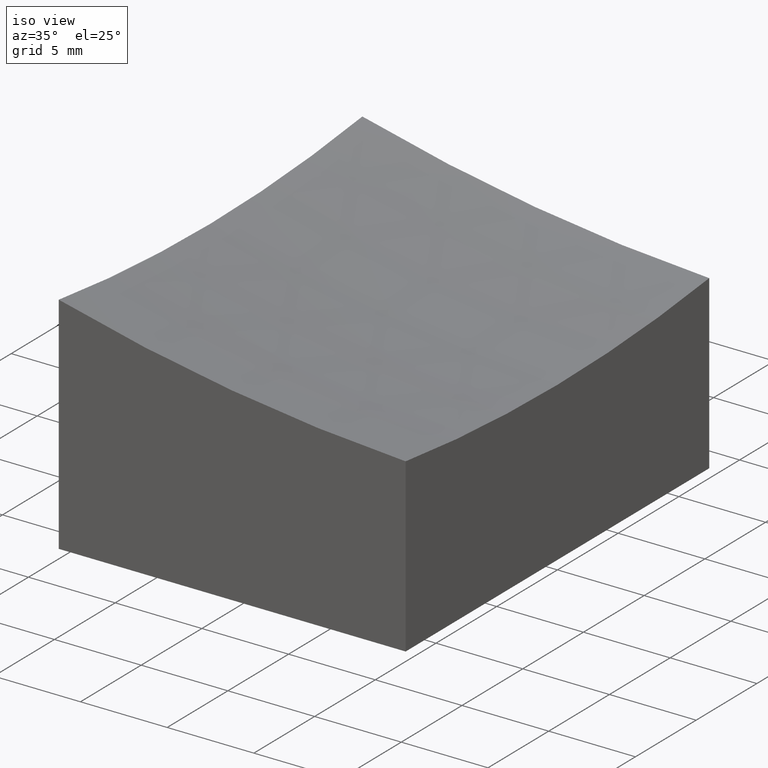
[diagram: clean part render]
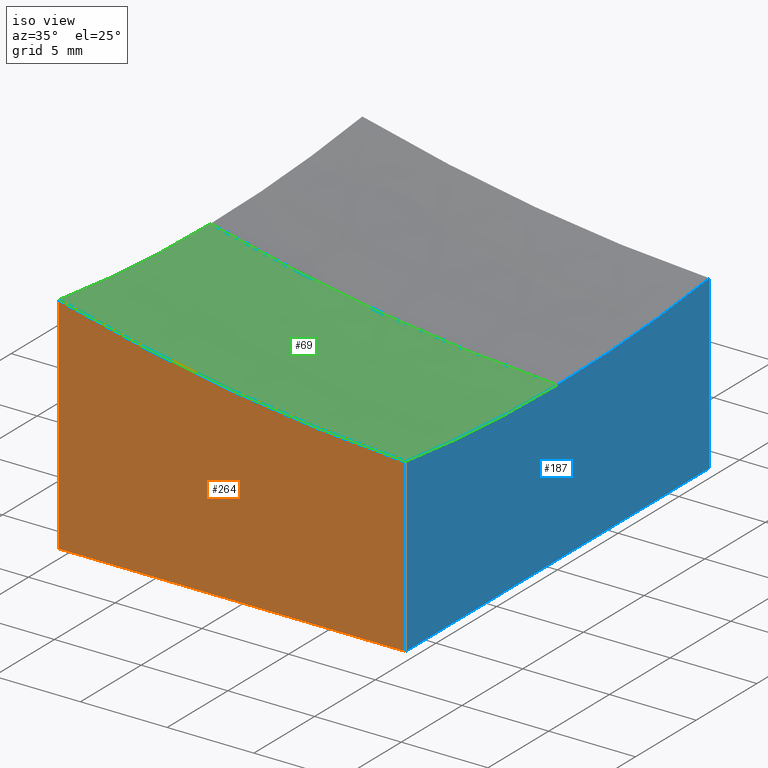
[diagram: same view with three faces highlighted in distinct colors, each labeled with its STEP entity id]
A machine part, iso view with three faces highlighted in distinct colors.
Their STEP definitions:

[orange] entity #264 — the highlighted planar face has unit normal (-0, 1, 0).
#2 = VERTEX_POINT ( 'NONE', #99 ) ;
#7 = AXIS2_PLACEMENT_3D ( 'NONE', #267, #100, #229 ) ;
#12 = ORIENTED_EDGE ( 'NONE', *, *, #246, .F. ) ;
#19 = EDGE_CURVE ( 'NONE', #32, #2, #88, .T. ) ;
#25 = ORIENTED_EDGE ( 'NONE', *, *, #217, .T. ) ;
#29 = CARTESIAN_POINT ( 'NONE',  ( -9.999999999999998224, -12.50000000000000355, 10.00000000000000000 ) ) ;
#30 = LINE ( 'NONE', #178, #33 ) ;
#32 = VERTEX_POINT ( 'NONE', #165 ) ;
#33 = VECTOR ( 'NONE', #202, 1000.000000000000000 ) ;
#34 = DIRECTION ( 'NONE',  ( -0.000000000000000000, -0.000000000000000000, -1.000000000000000000 ) ) ;
#39 = EDGE_LOOP ( 'NONE', ( #12, #169, #206, #25 ) ) ;
#43 = VERTEX_POINT ( 'NONE', #209 ) ;
#58 = PLANE ( 'NONE',  #7 ) ;
#88 = CIRCLE ( 'NONE', #144, 99.21567416492216296 ) ;
#99 = CARTESIAN_POINT ( 'NONE',  ( -9.999999999999998224, -12.50000000000000355, 2.985678151642384925 ) ) ;
#100 = DIRECTION ( 'NONE',  ( -1.734723475976807094E-16, 1.000000000000000000, 0.000000000000000000 ) ) ;
#112 = VECTOR ( 'NONE', #115, 1000.000000000000000 ) ;
#115 = DIRECTION ( 'NONE',  ( -0.000000000000000000, -0.000000000000000000, -1.000000000000000000 ) ) ;
#126 = DIRECTION ( 'NONE',  ( -1.734723475976807094E-16, 1.000000000000000000, 0.000000000000000000 ) ) ;
#139 = VECTOR ( 'NONE', #34, 1000.000000000000000 ) ;
#144 = AXIS2_PLACEMENT_3D ( 'NONE', #271, #126, #227 ) ;
#145 = CARTESIAN_POINT ( 'NONE',  ( 10.00000000000000178, -12.50000000000000000, 10.00000000000000000 ) ) ;
#148 = LINE ( 'NONE', #145, #139 ) ;
#153 = VERTEX_POINT ( 'NONE', #222 ) ;
#165 = CARTESIAN_POINT ( 'NONE',  ( 10.00000000000000178, -12.50000000000000000, -0.08960591303207310343 ) ) ;
#167 = EDGE_CURVE ( 'NONE', #2, #43, #220, .T. ) ;
#169 = ORIENTED_EDGE ( 'NONE', *, *, #19, .T. ) ;
#178 = CARTESIAN_POINT ( 'NONE',  ( 10.00000000000000178, -12.50000000000000000, -10.00000000000000000 ) ) ;
#202 = DIRECTION ( 'NONE',  ( 1.000000000000000000, 1.734723475976807094E-16, -0.000000000000000000 ) ) ;
#206 = ORIENTED_EDGE ( 'NONE', *, *, #167, .T. ) ;
#209 = CARTESIAN_POINT ( 'NONE',  ( -9.999999999999998224, -12.50000000000000355, -10.00000000000000000 ) ) ;
#217 = EDGE_CURVE ( 'NONE', #43, #153, #30, .T. ) ;
#220 = LINE ( 'NONE', #29, #112 ) ;
#222 = CARTESIAN_POINT ( 'NONE',  ( 10.00000000000000178, -12.50000000000000000, -10.00000000000000000 ) ) ;
#227 = DIRECTION ( 'NONE',  ( -1.000000000000000000, -1.748436918438156363E-16, 0.000000000000000000 ) ) ;
#229 = DIRECTION ( 'NONE',  ( -1.000000000000000000, -1.734723475976807094E-16, 0.000000000000000000 ) ) ;
#246 = EDGE_CURVE ( 'NONE', #32, #153, #148, .T. ) ;
#247 = FACE_OUTER_BOUND ( 'NONE', #39, .T. ) ;
#264 = ADVANCED_FACE ( 'NONE', ( #247 ), #58, .F. ) ;
#267 = CARTESIAN_POINT ( 'NONE',  ( 10.00000000000000178, -12.50000000000000000, 10.00000000000000000 ) ) ;
#271 = CARTESIAN_POINT ( 'NONE',  ( 15.00000000000001599, -12.49999999999999822, 99.00000000000000000 ) ) ;

[blue] entity #187 — the highlighted planar face has unit normal (-1, 0, 0).
#8 = DIRECTION ( 'NONE',  ( -1.000000000000000000, 0.000000000000000000, 0.000000000000000000 ) ) ;
#18 = EDGE_CURVE ( 'NONE', #108, #32, #265, .T. ) ;
#32 = VERTEX_POINT ( 'NONE', #165 ) ;
#34 = DIRECTION ( 'NONE',  ( -0.000000000000000000, -0.000000000000000000, -1.000000000000000000 ) ) ;
#37 = CARTESIAN_POINT ( 'NONE',  ( 10.00000000000000178, 12.50000000000000000, 10.00000000000000000 ) ) ;
#49 = CARTESIAN_POINT ( 'NONE',  ( 10.00000000000000178, -12.50000000000000000, -10.00000000000000000 ) ) ;
#53 = CIRCLE ( 'NONE', #199, 99.87492177719090591 ) ;
#73 = DIRECTION ( 'NONE',  ( 0.000000000000000000, 0.000000000000000000, 1.000000000000000000 ) ) ;
#82 = ORIENTED_EDGE ( 'NONE', *, *, #177, .T. ) ;
#92 = DIRECTION ( 'NONE',  ( 0.000000000000000000, 0.000000000000000000, 1.000000000000000000 ) ) ;
#97 = VECTOR ( 'NONE', #260, 1000.000000000000000 ) ;
#98 = ORIENTED_EDGE ( 'NONE', *, *, #275, .T. ) ;
#101 = DIRECTION ( 'NONE',  ( -1.000000000000000000, 0.000000000000000000, 0.000000000000000000 ) ) ;
#108 = VERTEX_POINT ( 'NONE', #272 ) ;
#114 = CARTESIAN_POINT ( 'NONE',  ( 10.00000000000000178, 12.50000000000000000, -0.08960591303207310343 ) ) ;
#131 = ORIENTED_EDGE ( 'NONE', *, *, #246, .T. ) ;
#139 = VECTOR ( 'NONE', #34, 1000.000000000000000 ) ;
#143 = VERTEX_POINT ( 'NONE', #114 ) ;
#145 = CARTESIAN_POINT ( 'NONE',  ( 10.00000000000000178, -12.50000000000000000, 10.00000000000000000 ) ) ;
#148 = LINE ( 'NONE', #145, #139 ) ;
#153 = VERTEX_POINT ( 'NONE', #222 ) ;
#161 = LINE ( 'NONE', #49, #97 ) ;
#165 = CARTESIAN_POINT ( 'NONE',  ( 10.00000000000000178, -12.50000000000000000, -0.08960591303207310343 ) ) ;
#177 = EDGE_CURVE ( 'NONE', #153, #192, #161, .T. ) ;
#184 = LINE ( 'NONE', #37, #225 ) ;
#186 = DIRECTION ( 'NONE',  ( 0.000000000000000000, 0.000000000000000000, 1.000000000000000000 ) ) ;
#187 = ADVANCED_FACE ( 'NONE', ( #201 ), #242, .F. ) ;
#189 = CARTESIAN_POINT ( 'NONE',  ( 10.00000000000000178, 0.000000000000000000, 99.00000000000000000 ) ) ;
#192 = VERTEX_POINT ( 'NONE', #221 ) ;
#199 = AXIS2_PLACEMENT_3D ( 'NONE', #189, #273, #73 ) ;
#201 = FACE_OUTER_BOUND ( 'NONE', #268, .T. ) ;
#205 = DIRECTION ( 'NONE',  ( -0.000000000000000000, -0.000000000000000000, -1.000000000000000000 ) ) ;
#208 = AXIS2_PLACEMENT_3D ( 'NONE', #230, #101, #186 ) ;
#221 = CARTESIAN_POINT ( 'NONE',  ( 10.00000000000000178, 12.50000000000000000, -10.00000000000000000 ) ) ;
#222 = CARTESIAN_POINT ( 'NONE',  ( 10.00000000000000178, -12.50000000000000000, -10.00000000000000000 ) ) ;
#224 = EDGE_CURVE ( 'NONE', #143, #192, #184, .T. ) ;
#225 = VECTOR ( 'NONE', #205, 1000.000000000000000 ) ;
#230 = CARTESIAN_POINT ( 'NONE',  ( 10.00000000000000178, 0.000000000000000000, 99.00000000000000000 ) ) ;
#232 = ORIENTED_EDGE ( 'NONE', *, *, #18, .T. ) ;
#241 = CARTESIAN_POINT ( 'NONE',  ( 10.00000000000000178, -12.50000000000000000, 10.00000000000000000 ) ) ;
#242 = PLANE ( 'NONE',  #263 ) ;
#245 = ORIENTED_EDGE ( 'NONE', *, *, #224, .F. ) ;
#246 = EDGE_CURVE ( 'NONE', #32, #153, #148, .T. ) ;
#260 = DIRECTION ( 'NONE',  ( 0.000000000000000000, 1.000000000000000000, 0.000000000000000000 ) ) ;
#263 = AXIS2_PLACEMENT_3D ( 'NONE', #241, #8, #92 ) ;
#265 = CIRCLE ( 'NONE', #208, 99.87492177719090591 ) ;
#268 = EDGE_LOOP ( 'NONE', ( #245, #98, #232, #131, #82 ) ) ;
#272 = CARTESIAN_POINT ( 'NONE',  ( 10.00000000000000178, -6.123233995736767268E-16, -0.8749217771908888164 ) ) ;
#273 = DIRECTION ( 'NONE',  ( -1.000000000000000000, 0.000000000000000000, 0.000000000000000000 ) ) ;
#275 = EDGE_CURVE ( 'NONE', #143, #108, #53, .T. ) ;

[green] entity #69 — the highlighted spherical surface has radius 100 mm.
#2 = VERTEX_POINT ( 'NONE', #99 ) ;
#18 = EDGE_CURVE ( 'NONE', #108, #32, #265, .T. ) ;
#19 = EDGE_CURVE ( 'NONE', #32, #2, #88, .T. ) ;
#32 = VERTEX_POINT ( 'NONE', #165 ) ;
#36 = DIRECTION ( 'NONE',  ( 1.000000000000000000, 0.000000000000000000, -1.387778780781445676E-16 ) ) ;
#40 = CIRCLE ( 'NONE', #198, 100.0000000000000000 ) ;
#45 = VERTEX_POINT ( 'NONE', #182 ) ;
#50 = DIRECTION ( 'NONE',  ( 1.000000000000000000, 1.224646799147353207E-16, 0.000000000000000000 ) ) ;
#69 = ADVANCED_FACE ( 'NONE', ( #149 ), #250, .F. ) ;
#78 = CARTESIAN_POINT ( 'NONE',  ( 15.00000000000001421, 0.000000000000000000, 99.00000000000000000 ) ) ;
#88 = CIRCLE ( 'NONE', #144, 99.21567416492216296 ) ;
#89 = EDGE_CURVE ( 'NONE', #2, #45, #243, .T. ) ;
#93 = DIRECTION ( 'NONE',  ( 1.224646799147353207E-16, -1.000000000000000000, -1.487096486582537186E-32 ) ) ;
#95 = ORIENTED_EDGE ( 'NONE', *, *, #18, .F. ) ;
#99 = CARTESIAN_POINT ( 'NONE',  ( -9.999999999999998224, -12.50000000000000355, 2.985678151642384925 ) ) ;
#101 = DIRECTION ( 'NONE',  ( -1.000000000000000000, 0.000000000000000000, 0.000000000000000000 ) ) ;
#108 = VERTEX_POINT ( 'NONE', #272 ) ;
#126 = DIRECTION ( 'NONE',  ( -1.734723475976807094E-16, 1.000000000000000000, 0.000000000000000000 ) ) ;
#129 = ORIENTED_EDGE ( 'NONE', *, *, #19, .F. ) ;
#137 = CARTESIAN_POINT ( 'NONE',  ( 15.00000000000001421, 0.000000000000000000, 99.00000000000000000 ) ) ;
#141 = EDGE_CURVE ( 'NONE', #45, #108, #40, .T. ) ;
#144 = AXIS2_PLACEMENT_3D ( 'NONE', #271, #126, #227 ) ;
#149 = FACE_OUTER_BOUND ( 'NONE', #234, .T. ) ;
#165 = CARTESIAN_POINT ( 'NONE',  ( 10.00000000000000178, -12.50000000000000000, -0.08960591303207310343 ) ) ;
#179 = AXIS2_PLACEMENT_3D ( 'NONE', #78, #188, #36 ) ;
#182 = CARTESIAN_POINT ( 'NONE',  ( -9.999999999999998224, -3.061616997868383043E-15, 2.175416344814578906 ) ) ;
#186 = DIRECTION ( 'NONE',  ( 0.000000000000000000, 0.000000000000000000, 1.000000000000000000 ) ) ;
#188 = DIRECTION ( 'NONE',  ( 0.000000000000000000, -1.000000000000000000, -0.000000000000000000 ) ) ;
#190 = DIRECTION ( 'NONE',  ( 1.000000000000000000, 0.000000000000000000, 0.000000000000000000 ) ) ;
#195 = ORIENTED_EDGE ( 'NONE', *, *, #89, .F. ) ;
#198 = AXIS2_PLACEMENT_3D ( 'NONE', #137, #93, #50 ) ;
#208 = AXIS2_PLACEMENT_3D ( 'NONE', #230, #101, #186 ) ;
#214 = AXIS2_PLACEMENT_3D ( 'NONE', #251, #190, #231 ) ;
#227 = DIRECTION ( 'NONE',  ( -1.000000000000000000, -1.748436918438156363E-16, 0.000000000000000000 ) ) ;
#230 = CARTESIAN_POINT ( 'NONE',  ( 10.00000000000000178, 0.000000000000000000, 99.00000000000000000 ) ) ;
#231 = DIRECTION ( 'NONE',  ( 0.000000000000000000, 0.000000000000000000, -1.000000000000000000 ) ) ;
#234 = EDGE_LOOP ( 'NONE', ( #252, #195, #129, #95 ) ) ;
#243 = CIRCLE ( 'NONE', #214, 96.82458365518542109 ) ;
#250 = SPHERICAL_SURFACE ( 'NONE', #179, 100.0000000000000000 ) ;
#251 = CARTESIAN_POINT ( 'NONE',  ( -10.00000000000000000, 0.000000000000000000, 99.00000000000000000 ) ) ;
#252 = ORIENTED_EDGE ( 'NONE', *, *, #141, .F. ) ;
#265 = CIRCLE ( 'NONE', #208, 99.87492177719090591 ) ;
#271 = CARTESIAN_POINT ( 'NONE',  ( 15.00000000000001599, -12.49999999999999822, 99.00000000000000000 ) ) ;
#272 = CARTESIAN_POINT ( 'NONE',  ( 10.00000000000000178, -6.123233995736767268E-16, -0.8749217771908888164 ) ) ;